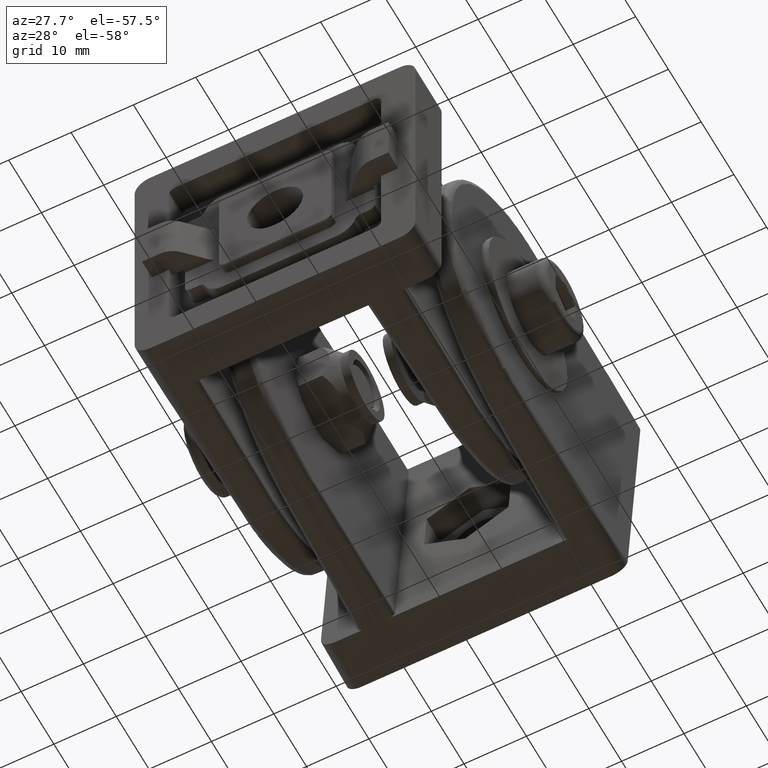
[diagram: clean part render]
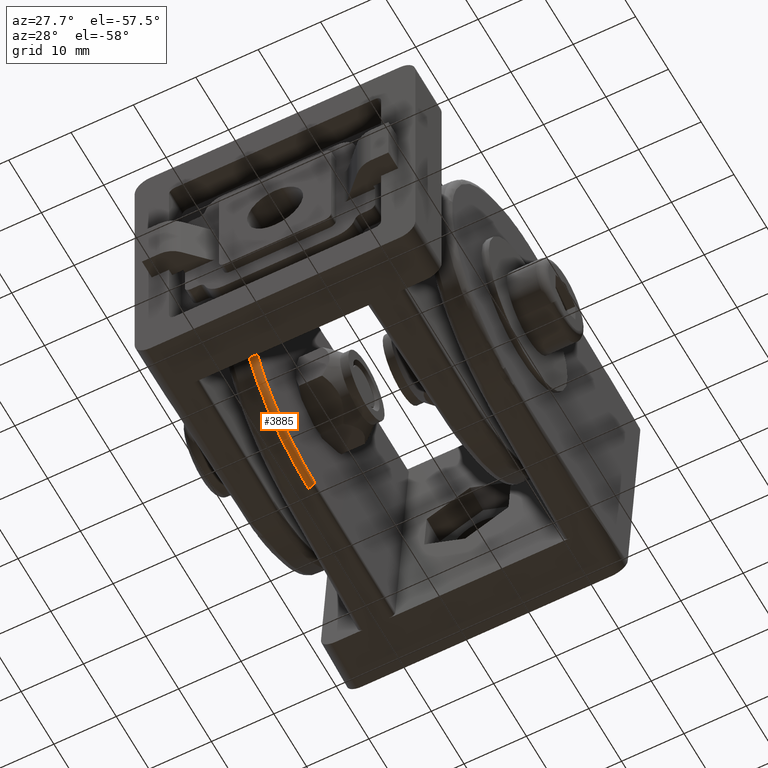
[diagram: same view with one face highlighted and labeled with its STEP entity id]
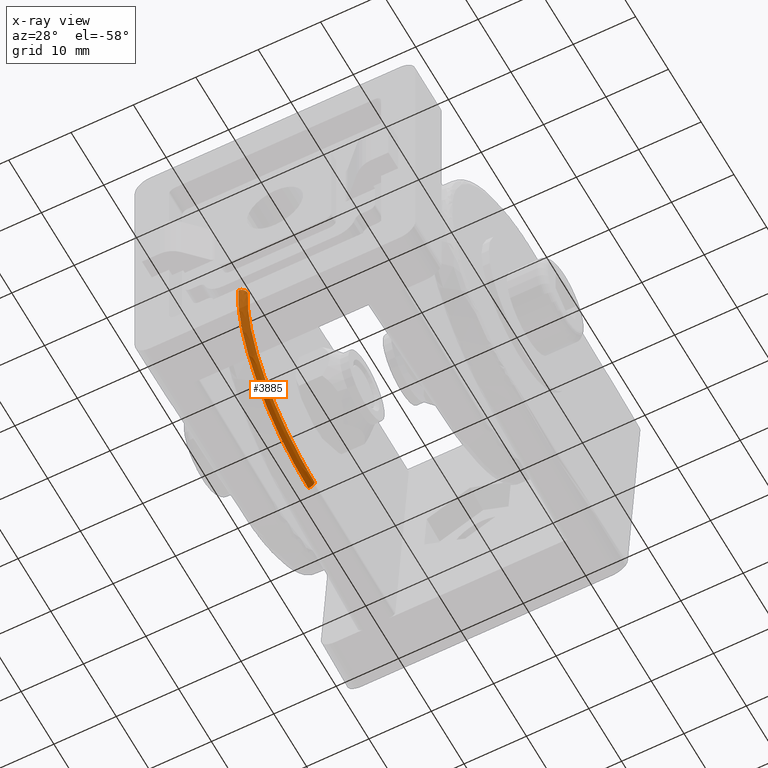
[diagram: x-ray of the same camera — body ghosted, the highlighted face saturated]
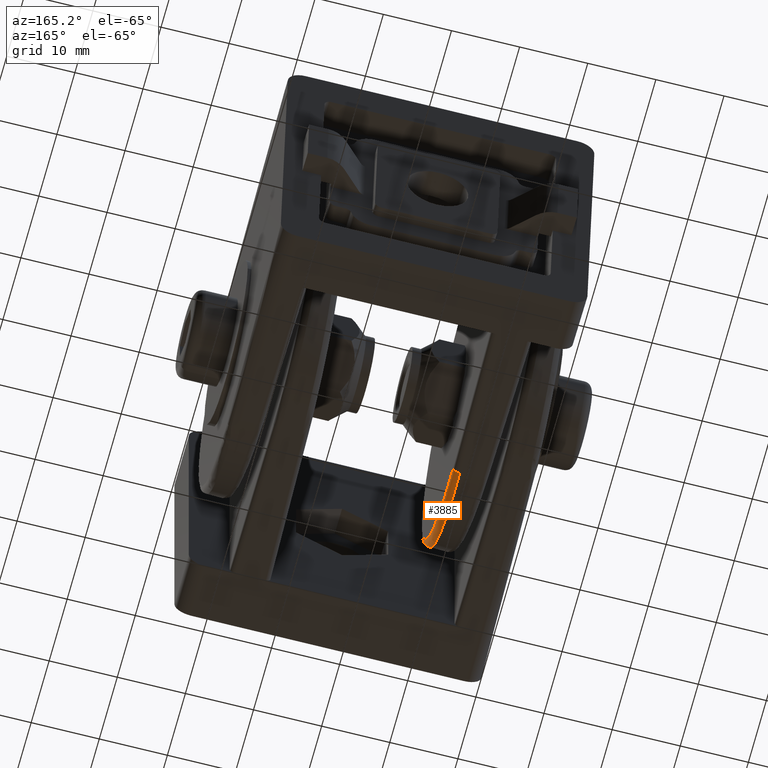
[diagram: same view with one face highlighted and labeled with its STEP entity id]
A machine part, auxiliary view. The second image highlights one B-rep face of the part: STEP entity #3885.
The next image is the same camera in x-ray: the body ghosted, the highlighted face saturated — about 33% of this face is hidden behind the body in this view.
A second angle (auxiliary view) of the same face is appended — the face is thin or edge-on in the first view.
In plain terms, the highlighted face is a freeform B-spline surface patch.
Its self-contained STEP definition (entity closure, byte-faithful):
#1028=FACE_OUTER_BOUND('',#1255,.T.);
#1255=EDGE_LOOP('',(#2715,#2716,#2717,#2718));
#1521=(
BOUNDED_CURVE()
B_SPLINE_CURVE(3,(#5701,#5702,#5703,#5704,#5705,#5706,#5707,#5708,#5709,
#5710,#5711,#5712,#5713,#5714,#5715,#5716,#5717,#5718),.UNSPECIFIED.,.F.,
 .F.)
B_SPLINE_CURVE_WITH_KNOTS((4,2,2,2,2,2,2,2,4),(4.71238898038469,4.90873852123405,
5.10508806208341,5.30143760293278,5.49778714378214,5.6941366846315,5.89048622548086,
6.08683576633022,6.28318530717959),.UNSPECIFIED.)
CURVE()
GEOMETRIC_REPRESENTATION_ITEM()
RATIONAL_B_SPLINE_CURVE((1.,1.,1.,1.,1.,1.,1.,1.,1.,1.,1.,1.,1.,1.,1.,1.,
1.,1.))
REPRESENTATION_ITEM('')
);
#1569=CIRCLE('',#4119,1.);
#1570=CIRCLE('',#4120,1.);
#1713=B_SPLINE_CURVE_WITH_KNOTS('',3,(#5673,#5674,#5675,#5676,#5677,#5678,
#5679,#5680,#5681,#5682,#5683,#5684,#5685,#5686,#5687,#5688,#5689,#5690,
#5691,#5692,#5693,#5694,#5695,#5696,#5697),.UNSPECIFIED.,.F.,.F.,(4,3,3,
3,3,3,3,3,4),(0.,0.196349540849362,0.392699081698723,0.589048622548085,
0.785398163397448,0.98174770424681,1.17809724509617,1.37444678594554,1.5707963267949),
 .UNSPECIFIED.);
#1749=VERTEX_POINT('',#5671);
#1750=VERTEX_POINT('',#5672);
#1751=VERTEX_POINT('',#5698);
#1752=VERTEX_POINT('',#5700);
#2137=EDGE_CURVE('',#1749,#1750,#1713,.T.);
#2138=EDGE_CURVE('',#1749,#1751,#1569,.T.);
#2139=EDGE_CURVE('',#1752,#1751,#1521,.T.);
#2140=EDGE_CURVE('',#1750,#1752,#1570,.T.);
#2715=ORIENTED_EDGE('',*,*,#2137,.F.);
#2716=ORIENTED_EDGE('',*,*,#2138,.T.);
#2717=ORIENTED_EDGE('',*,*,#2139,.F.);
#2718=ORIENTED_EDGE('',*,*,#2140,.F.);
#3871=(
BOUNDED_SURFACE()
B_SPLINE_SURFACE(3,2,((#5617,#5618,#5619),(#5620,#5621,#5622),(#5623,#5624,
#5625),(#5626,#5627,#5628),(#5629,#5630,#5631),(#5632,#5633,#5634),(#5635,
#5636,#5637),(#5638,#5639,#5640),(#5641,#5642,#5643),(#5644,#5645,#5646),
(#5647,#5648,#5649),(#5650,#5651,#5652),(#5653,#5654,#5655),(#5656,#5657,
#5658),(#5659,#5660,#5661),(#5662,#5663,#5664),(#5665,#5666,#5667),(#5668,
#5669,#5670)),.UNSPECIFIED.,.F.,.F.,.F.)
B_SPLINE_SURFACE_WITH_KNOTS((4,2,2,2,2,2,2,2,4),(3,3),(4.71238898038469,
4.90873852123405,5.10508806208341,5.30143760293278,5.49778714378214,5.6941366846315,
5.89048622548086,6.08683576633022,6.28318530717959),(0.,1.),
 .UNSPECIFIED.)
GEOMETRIC_REPRESENTATION_ITEM()
RATIONAL_B_SPLINE_SURFACE(((1.,0.707106781186548,1.),(1.,0.707712526682605,
1.),(1.,0.708317448066352,1.),(1.,0.709502617580048,1.),(1.,0.710082827134969,
1.),(1.,0.711196515167099,1.),(1.,0.711729968227786,1.),(1.,0.712730022976698,
1.),(1.,0.713196602605831,1.),(1.,0.714045421480667,1.),(1.,0.714427642554949,
1.),(1.,0.715093491993826,1.),(1.,0.715377106452329,1.),(1.,0.715835209568772,
1.),(1.,0.716009688834327,1.),(1.,0.716243058124978,1.),(1.,0.716302011236292,
1.),(1.,0.716301943424649,1.)))
REPRESENTATION_ITEM('')
SURFACE()
);
#3885=ADVANCED_FACE('',(#1028),#3871,.T.);
#4119=AXIS2_PLACEMENT_3D('',#5699,#4506,#4507);
#4120=AXIS2_PLACEMENT_3D('',#5719,#4508,#4509);
#4506=DIRECTION('center_axis',(0.,0.,-1.));
#4507=DIRECTION('ref_axis',(-1.,0.,0.));
#4508=DIRECTION('center_axis',(-0.0261769483078655,-0.999657324975558,4.54097667590857E-17));
#4509=DIRECTION('ref_axis',(0.999657324975558,-0.0261769483078655,1.92592994438724E-34));
#5617=CARTESIAN_POINT('Ctrl Pts',(11.116054624391,31.5261769483079,1.));
#5618=CARTESIAN_POINT('Ctrl Pts',(11.116054624391,31.5261769483079,8.67361737988404E-16));
#5619=CARTESIAN_POINT('Ctrl Pts',(12.1157119493666,31.5,8.67361737988404E-16));
#5620=CARTESIAN_POINT('Ctrl Pts',(11.1529031303957,32.9333646200241,1.00000000000244));
#5621=CARTESIAN_POINT('Ctrl Pts',(11.1545828700865,32.997511290856,0.00171183183029755));
#5622=CARTESIAN_POINT('Ctrl Pts',(12.15256045537,32.9726382610968,3.92083568100759E-16));
#5623=CARTESIAN_POINT('Ctrl Pts',(11.189749889297,34.3404855725538,1.13859088950695));
#5624=CARTESIAN_POINT('Ctrl Pts',(11.193134688695,34.4697458465923,0.148212118883644));
#5625=CARTESIAN_POINT('Ctrl Pts',(12.1894072142727,34.4452066997945,0.145036977391396));
#5626=CARTESIAN_POINT('Ctrl Pts',(11.2620300139475,37.1007521707554,1.68764205315414));
#5627=CARTESIAN_POINT('Ctrl Pts',(11.2687403761578,37.3570105648917,0.725933926095055));
#5628=CARTESIAN_POINT('Ctrl Pts',(12.2616873389229,37.3338577909312,0.719625404463229));
#5629=CARTESIAN_POINT('Ctrl Pts',(11.2974611745053,38.4538136035628,2.09808875151525));
#5630=CARTESIAN_POINT('Ctrl Pts',(11.3057969048984,38.7721423043783,1.15669784843274));
#5631=CARTESIAN_POINT('Ctrl Pts',(12.2971184994807,38.7498523136402,1.14916264693288));
#5632=CARTESIAN_POINT('Ctrl Pts',(11.3655475631434,41.0539278847518,3.1750913504994));
#5633=CARTESIAN_POINT('Ctrl Pts',(11.3769855127265,41.4907255568591,2.28616447363276));
#5634=CARTESIAN_POINT('Ctrl Pts',(12.3652048881192,41.4709021427888,2.27625839005919));
#5635=CARTESIAN_POINT('Ctrl Pts',(11.3982011077268,42.3009164429765,3.84162062127793));
#5636=CARTESIAN_POINT('Ctrl Pts',(11.411124845238,42.7944540668618,2.9845031179433));
#5637=CARTESIAN_POINT('Ctrl Pts',(12.3978584327023,42.7758901688408,2.97378902226661));
#5638=CARTESIAN_POINT('Ctrl Pts',(11.4594772386203,44.6409574734822,5.40518604971262));
#5639=CARTESIAN_POINT('Ctrl Pts',(11.4751680394878,45.2401649837793,4.62205234482848));
#5640=CARTESIAN_POINT('Ctrl Pts',(12.4591345635959,45.2247703170413,4.61007842411885));
#5641=CARTESIAN_POINT('Ctrl Pts',(11.4880983098232,45.7339520861533,6.30218354682274));
#5642=CARTESIAN_POINT('Ctrl Pts',(11.5050819536605,46.3825312776127,5.56104298220835));
#5643=CARTESIAN_POINT('Ctrl Pts',(12.4877556347978,46.3686018884433,5.54879673504862));
#5644=CARTESIAN_POINT('Ctrl Pts',(11.5402093756259,47.7239934014839,8.29222486215563));
#5645=CARTESIAN_POINT('Ctrl Pts',(11.5595279118878,48.4617385371347,7.64361452492086));
#5646=CARTESIAN_POINT('Ctrl Pts',(12.5398667006024,48.4512032649513,7.63139811155665));
#5647=CARTESIAN_POINT('Ctrl Pts',(11.5636980817328,48.620990898589,9.38521947482514));
#5648=CARTESIAN_POINT('Ctrl Pts',(11.5840711025482,49.3990051747157,8.78714668639292));
#5649=CARTESIAN_POINT('Ctrl Pts',(12.5633554067091,49.3899215758791,8.77522968295561));
#5650=CARTESIAN_POINT('Ctrl Pts',(11.6046414834104,50.1845563270361,11.7252605053319));
#5651=CARTESIAN_POINT('Ctrl Pts',(11.6268373404344,51.0321819095995,11.2347219630863));
#5652=CARTESIAN_POINT('Ctrl Pts',(12.6042988083853,51.0262109777354,11.2241098311623));
#5653=CARTESIAN_POINT('Ctrl Pts',(11.6220951666184,50.851085597809,12.972249063557));
#5654=CARTESIAN_POINT('Ctrl Pts',(11.6450708045963,51.7284898135691,12.5388876780312));
#5655=CARTESIAN_POINT('Ctrl Pts',(12.6217524915931,51.7237416099412,12.5290978572121));
#5656=CARTESIAN_POINT('Ctrl Pts',(11.6502974722052,51.928088196792,15.5723633447441));
#5657=CARTESIAN_POINT('Ctrl Pts',(11.6745227741301,52.8532151532912,15.2575604898108));
#5658=CARTESIAN_POINT('Ctrl Pts',(12.6499547971816,52.8508373530667,15.2501476863588));
#5659=CARTESIAN_POINT('Ctrl Pts',(11.6610453972569,52.3385348951551,16.9254247775504));
#5660=CARTESIAN_POINT('Ctrl Pts',(11.6857492976758,53.2819387906358,16.6723352849343));
#5661=CARTESIAN_POINT('Ctrl Pts',(12.6607027222327,53.280374595536,16.6661422090649));
#5662=CARTESIAN_POINT('Ctrl Pts',(11.6754228079655,52.8875860587995,19.6856913757561));
#5663=CARTESIAN_POINT('Ctrl Pts',(11.700761931257,53.8552481373846,19.5578967885651));
#5664=CARTESIAN_POINT('Ctrl Pts',(12.6750801329408,53.8549630226094,19.5547933002092));
#5665=CARTESIAN_POINT('Ctrl Pts',(11.6790519381284,53.0261769483079,21.0928123282821));
#5666=CARTESIAN_POINT('Ctrl Pts',(11.7045523922213,53.9999999999903,21.0290317311761));
#5667=CARTESIAN_POINT('Ctrl Pts',(12.6787092631052,54.,21.0273617389003));
#5668=CARTESIAN_POINT('Ctrl Pts',(11.6790519381284,53.0261769483079,22.5));
#5669=CARTESIAN_POINT('Ctrl Pts',(11.7045523921823,54.,22.5));
#5670=CARTESIAN_POINT('Ctrl Pts',(12.678709263104,54.,22.5));
#5671=CARTESIAN_POINT('',(11.6790519381284,53.0261769483079,22.5));
#5672=CARTESIAN_POINT('',(11.116054624391,31.5261769483079,1.));
#5673=CARTESIAN_POINT('Ctrl Pts',(11.6790519381284,53.0261769483079,22.5));
#5674=CARTESIAN_POINT('Ctrl Pts',(11.6790519381284,53.0261769483079,21.0928123282821));
#5675=CARTESIAN_POINT('Ctrl Pts',(11.6754228079655,52.8875860587995,19.685691375756));
#5676=CARTESIAN_POINT('Ctrl Pts',(11.6682341026112,52.6130604769773,18.3055580766532));
#5677=CARTESIAN_POINT('Ctrl Pts',(11.6610453972569,52.3385348951551,16.9254247775504));
#5678=CARTESIAN_POINT('Ctrl Pts',(11.6502974722052,51.928088196792,15.5723633447441));
#5679=CARTESIAN_POINT('Ctrl Pts',(11.6361963194118,51.3895868973005,14.2723062041505));
#5680=CARTESIAN_POINT('Ctrl Pts',(11.6220951666184,50.851085597809,12.972249063557));
#5681=CARTESIAN_POINT('Ctrl Pts',(11.6046414834104,50.1845563270361,11.7252605053319));
#5682=CARTESIAN_POINT('Ctrl Pts',(11.5841697825716,49.4027736128126,10.5552399900785));
#5683=CARTESIAN_POINT('Ctrl Pts',(11.5636980817328,48.620990898589,9.38521947482514));
#5684=CARTESIAN_POINT('Ctrl Pts',(11.5402093756259,47.7239934014839,8.29222486215563));
#5685=CARTESIAN_POINT('Ctrl Pts',(11.5141538427245,46.7289727438186,7.29720420448919));
#5686=CARTESIAN_POINT('Ctrl Pts',(11.4880983098232,45.7339520861533,6.30218354682274));
#5687=CARTESIAN_POINT('Ctrl Pts',(11.4594772386203,44.6409574734822,5.40518604971262));
#5688=CARTESIAN_POINT('Ctrl Pts',(11.4288391731735,43.4709369582293,4.62340333549527));
#5689=CARTESIAN_POINT('Ctrl Pts',(11.3982011077268,42.3009164429765,3.84162062127793));
#5690=CARTESIAN_POINT('Ctrl Pts',(11.3655475631434,41.0539278847518,3.1750913504994));
#5691=CARTESIAN_POINT('Ctrl Pts',(11.3315043688244,39.7538707441573,2.63659005100732));
#5692=CARTESIAN_POINT('Ctrl Pts',(11.2974611745053,38.4538136035628,2.09808875151525));
#5693=CARTESIAN_POINT('Ctrl Pts',(11.2620300139475,37.1007521707554,1.68764205315414));
#5694=CARTESIAN_POINT('Ctrl Pts',(11.2258899516223,35.7206188716546,1.41311647133054));
#5695=CARTESIAN_POINT('Ctrl Pts',(11.189749889297,34.3404855725538,1.13859088950695));
#5696=CARTESIAN_POINT('Ctrl Pts',(11.1529031303957,32.9333646200241,1.00000000000244));
#5697=CARTESIAN_POINT('Ctrl Pts',(11.116054624391,31.5261769483079,1.));
#5698=CARTESIAN_POINT('',(12.678709263104,54.,22.5));
#5699=CARTESIAN_POINT('Origin',(12.678709263104,53.,22.5));
#5700=CARTESIAN_POINT('',(12.1157119493666,31.5,0.));
#5701=CARTESIAN_POINT('Ctrl Pts',(12.1157119493666,31.5,8.32667268468867E-16));
#5702=CARTESIAN_POINT('Ctrl Pts',(12.15256045537,32.9726382610968,3.57063915471893E-16));
#5703=CARTESIAN_POINT('Ctrl Pts',(12.1894072142727,34.4452066997945,0.145036977391396));
#5704=CARTESIAN_POINT('Ctrl Pts',(12.2616873389229,37.3338577909312,0.719625404463229));
#5705=CARTESIAN_POINT('Ctrl Pts',(12.2971184994807,38.7498523136402,1.14916264693288));
#5706=CARTESIAN_POINT('Ctrl Pts',(12.3652048881192,41.4709021427888,2.27625839005919));
#5707=CARTESIAN_POINT('Ctrl Pts',(12.3978584327023,42.7758901688408,2.97378902226661));
#5708=CARTESIAN_POINT('Ctrl Pts',(12.4591345635959,45.2247703170413,4.61007842411885));
#5709=CARTESIAN_POINT('Ctrl Pts',(12.4877556347978,46.3686018884433,5.54879673504862));
#5710=CARTESIAN_POINT('Ctrl Pts',(12.5398667006024,48.4512032649513,7.63139811155665));
#5711=CARTESIAN_POINT('Ctrl Pts',(12.5633554067091,49.3899215758791,8.77522968295561));
#5712=CARTESIAN_POINT('Ctrl Pts',(12.6042988083853,51.0262109777354,11.2241098311623));
#5713=CARTESIAN_POINT('Ctrl Pts',(12.6217524915931,51.7237416099412,12.5290978572121));
#5714=CARTESIAN_POINT('Ctrl Pts',(12.6499547971816,52.8508373530667,15.2501476863588));
#5715=CARTESIAN_POINT('Ctrl Pts',(12.6607027222327,53.280374595536,16.6661422090649));
#5716=CARTESIAN_POINT('Ctrl Pts',(12.6750801329408,53.8549630226094,19.5547933002092));
#5717=CARTESIAN_POINT('Ctrl Pts',(12.6787092631052,54.,21.0273617389003));
#5718=CARTESIAN_POINT('Ctrl Pts',(12.678709263104,54.,22.5));
#5719=CARTESIAN_POINT('Origin',(12.1157119493666,31.5,1.));